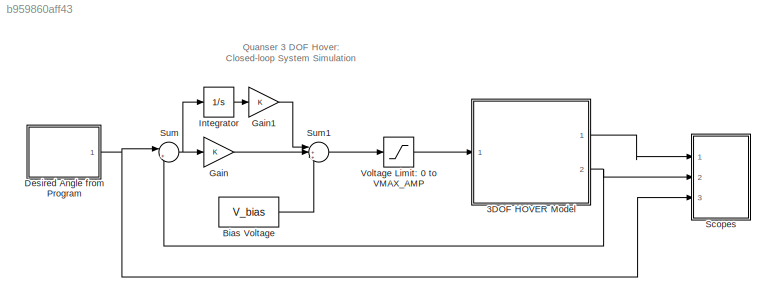
MODEL slx_b959860aff43
KIND model
CONFIG AbsTol = auto
CONFIG FixedStep = 0.002
CONFIG MaxStep = auto
CONFIG MinStep = auto
CONFIG RelTol = 1e-3
CONFIG SampleTimeConstraint = Unconstrained
CONFIG Solver = FixedStepDiscrete
CONFIG SolverMode = Auto
CONFIG SolverName = FixedStepDiscrete
CONFIG StartTime = 0.0
CONFIG StopTime = inf
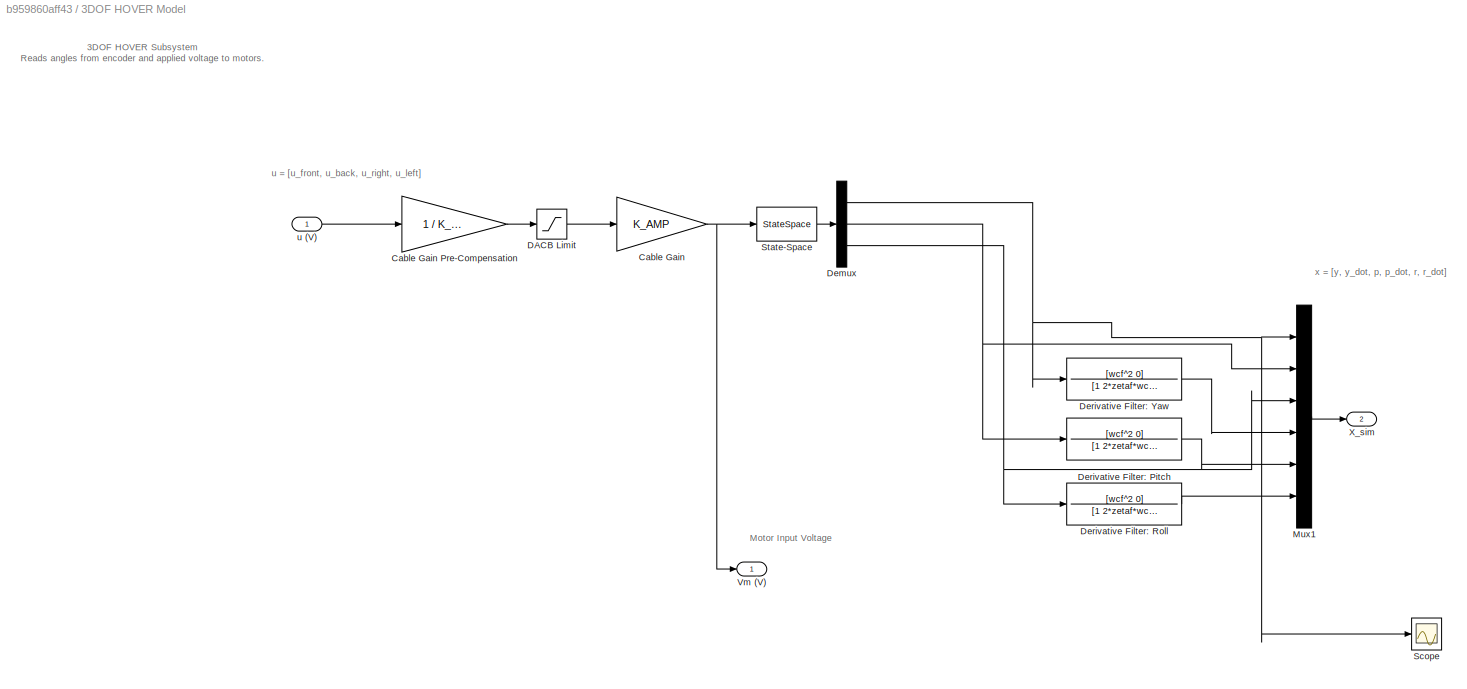
BLOCK [SubSystem] 3DOF HOVER Model
  Ports = [1, 2]
  RequestExecContextInheritance = off
  Variant = off
BLOCK [Gain] 3DOF HOVER Model/Cable Gain
  Gain = K_AMP
  Multiplication = Matrix(K*u)
BLOCK [Gain] 3DOF HOVER Model/Cable Gain Pre-Compensation
  Gain = 1 / K_AMP
  Multiplication = Matrix(K*u)
BLOCK [Saturate] 3DOF HOVER Model/DACB Limit
  InputPortMap = u0
  LowerLimit = -VMAX_DAC
  Ports = [1, 1]
  UpperLimit = VMAX_DAC
BLOCK [Demux] 3DOF HOVER Model/Demux
  DisplayOption = bar
  Outputs = 3
  Ports = [1, 3]
BLOCK [TransferFcn] 3DOF HOVER Model/Derivative Filter: Pitch
  Denominator = [1 2*zetaf*wcf wcf^2]
  Numerator = [wcf^2 0]
BLOCK [TransferFcn] 3DOF HOVER Model/Derivative Filter: Roll
  Denominator = [1 2*zetaf*wcf wcf^2]
  Numerator = [wcf^2 0]
BLOCK [TransferFcn] 3DOF HOVER Model/Derivative Filter: Yaw
  Denominator = [1 2*zetaf*wcf wcf^2]
  Numerator = [wcf^2 0]
BLOCK [Mux] 3DOF HOVER Model/Mux1
  DisplayOption = bar
  Inputs = 6
  Ports = [6, 1]
BLOCK [Scope] 3DOF HOVER Model/Scope
  Ports = [1]
  ScopeSpecificationString = Simulink.scopes.TimeScopeBlockCfg('CurrentConfiguration', extmgr.ConfigurationSet(extmgr.Configuration('Core','General UI',true),extmgr.Configuration('Core','Source UI',true),extmgr.Configuration('Sources','WiredSimulink',true),extmgr.Configuration('Visuals','Time Domain',true,'SerializedDisplays',{struct('MinYLimReal','-6.13347','MaxYLimReal','5.48015','YLabelReal','','MinYLimMag','0.00000','MaxY...<+1357ch>
BLOCK [StateSpace] 3DOF HOVER Model/State-Space
  A = A
  B = B
  C = C
  D = D
  Ports = [1, 1]
  X0 = 0
BLOCK [Outport] 3DOF HOVER Model/Vm (V)
  IconDisplay = Port number
BLOCK [Outport] 3DOF HOVER Model/X_sim
  IconDisplay = Port number
  Port = 2
BLOCK [Inport] 3DOF HOVER Model/u (V)
  IconDisplay = Port number
BLOCK [Constant] Bias Voltage
  Value = V_bias
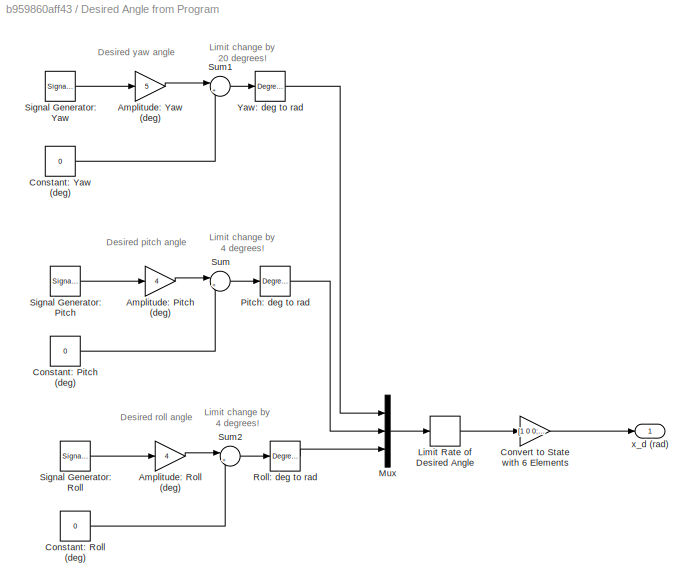
BLOCK [SubSystem] Desired Angle from Program
  Ports = [0, 1]
  RequestExecContextInheritance = off
  Variant = off
BLOCK [Gain] Desired Angle from Program/Amplitude: Pitch (deg)
  Gain = 4
  OutDataTypeStr = Inherit: Inherit via internal rule
  ParamDataTypeStr = Inherit: Inherit via internal rule
  SaturateOnIntegerOverflow = off
BLOCK [Gain] Desired Angle from Program/Amplitude: Roll (deg)
  Gain = 4
  OutDataTypeStr = Inherit: Inherit via internal rule
  ParamDataTypeStr = Inherit: Inherit via internal rule
  SaturateOnIntegerOverflow = off
BLOCK [Gain] Desired Angle from Program/Amplitude: Yaw (deg)
  Gain = 5
  OutDataTypeStr = Inherit: Inherit via internal rule
  ParamDataTypeStr = Inherit: Inherit via internal rule
  SaturateOnIntegerOverflow = off
BLOCK [Constant] Desired Angle from Program/Constant: Pitch (deg)
  Value = 0
BLOCK [Constant] Desired Angle from Program/Constant: Roll (deg)
  Value = 0
BLOCK [Constant] Desired Angle from Program/Constant: Yaw (deg)
  Value = 0
BLOCK [Gain] Desired Angle from Program/Convert to State with 6 Elements
  Gain = [1 0 0; 0 1 0; 0 0 1; 0 0 0; 0 0 0; 0 0 0];
  Multiplication = Matrix(K*u)
  OutDataTypeStr = Inherit: Inherit via internal rule
  ParamDataTypeStr = Inherit: Inherit via internal rule
  SaturateOnIntegerOverflow = off
BLOCK [RateLimiter] Desired Angle from Program/Limit Rate of Desired Angle
  FallingSlewLimit = -CMD_RATE_LIMIT
  RisingSlewLimit = CMD_RATE_LIMIT
BLOCK [Mux] Desired Angle from Program/Mux
  DisplayOption = bar
  Inputs = 3
  Ports = [3, 1]
BLOCK [Reference] Desired Angle from Program/Pitch: deg to rad  REF=simulink_extras/Transformations/Degrees to
Radians
  Ports = [1, 1]
  SourceBlock = simulink_extras/Transformations/Degrees to\nRadians
  SourceType = DegreesToRadians
BLOCK [Reference] Desired Angle from Program/Roll: deg to rad  REF=simulink_extras/Transformations/Degrees to
Radians
  Ports = [1, 1]
  SourceBlock = simulink_extras/Transformations/Degrees to\nRadians
  SourceType = DegreesToRadians
BLOCK [SignalGenerator] Desired Angle from Program/Signal Generator: Pitch
  Frequency = 0.1
  Ports = [0, 1]
  WaveForm = square
BLOCK [SignalGenerator] Desired Angle from Program/Signal Generator: Roll
  Frequency = 0.08
  Ports = [0, 1]
  WaveForm = square
BLOCK [SignalGenerator] Desired Angle from Program/Signal Generator: Yaw
  Frequency = 0.04
  Ports = [0, 1]
  WaveForm = square
BLOCK [Sum] Desired Angle from Program/Sum
  IconShape = round
  InputSameDT = off
  Inputs = |++
  OutDataTypeStr = Inherit: Inherit via internal rule
  Ports = [2, 1]
  SaturateOnIntegerOverflow = off
BLOCK [Sum] Desired Angle from Program/Sum1
  IconShape = round
  InputSameDT = off
  Inputs = |++
  OutDataTypeStr = Inherit: Inherit via internal rule
  Ports = [2, 1]
  SaturateOnIntegerOverflow = off
BLOCK [Sum] Desired Angle from Program/Sum2
  IconShape = round
  InputSameDT = off
  Inputs = |++
  OutDataTypeStr = Inherit: Inherit via internal rule
  Ports = [2, 1]
  SaturateOnIntegerOverflow = off
BLOCK [Reference] Desired Angle from Program/Yaw: deg to rad  REF=simulink_extras/Transformations/Degrees to
Radians
  Ports = [1, 1]
  SourceBlock = simulink_extras/Transformations/Degrees to\nRadians
  SourceType = DegreesToRadians
BLOCK [Outport] Desired Angle from Program/x_d (rad)
  IconDisplay = Port number
BLOCK [Gain] Gain
  Gain = K
  Multiplication = Matrix(K*u)
  OutDataTypeStr = Inherit: Inherit via internal rule
  ParamDataTypeStr = Inherit: Inherit via internal rule
  SaturateOnIntegerOverflow = off
BLOCK [Gain] Gain1
  Commented = on
  Gain = K
  Multiplication = Matrix(K*u)
  OutDataTypeStr = Inherit: Inherit via internal rule
  ParamDataTypeStr = Inherit: Inherit via internal rule
  SaturateOnIntegerOverflow = off
BLOCK [Integrator] Integrator
  Commented = on
  Ports = [1, 1]
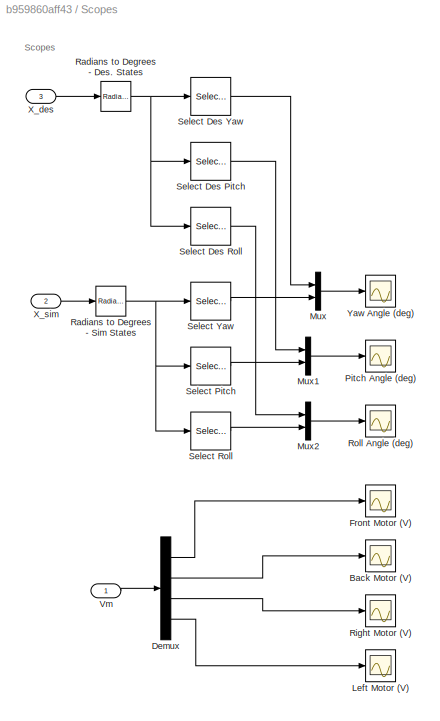
BLOCK [SubSystem] Scopes
  Ports = [3]
  RequestExecContextInheritance = off
  Variant = off
BLOCK [Scope] Scopes/Back Motor (V)
  Ports = [1]
  ScopeSpecificationString = Simulink.scopes.TimeScopeBlockCfg('CurrentConfiguration', extmgr.ConfigurationSet(extmgr.Configuration('Core','General UI',true),extmgr.Configuration('Core','Source UI',true),extmgr.Configuration('Sources','WiredSimulink',true,'DataLogging',true,'DataLoggingVariableName','data_Vb','DataLoggingMaxPoints','10000','DataLoggingLimitDataPoints',true,'DataLoggingSaveFormat','Array','DataLoggingDecimatio...<+1739ch>
BLOCK [Demux] Scopes/Demux
  DisplayOption = bar
  Ports = [1, 4]
BLOCK [Scope] Scopes/Front Motor (V)
  Ports = [1]
  ScopeSpecificationString = Simulink.scopes.TimeScopeBlockCfg('CurrentConfiguration', extmgr.ConfigurationSet(extmgr.Configuration('Core','General UI',true),extmgr.Configuration('Core','Source UI',true),extmgr.Configuration('Sources','WiredSimulink',true,'DataLogging',true,'DataLoggingVariableName','data_Vf','DataLoggingMaxPoints','10000','DataLoggingLimitDataPoints',true,'DataLoggingSaveFormat','Array','DataLoggingDecimatio...<+1741ch>
BLOCK [Scope] Scopes/Left Motor (V)
  Ports = [1]
  ScopeSpecificationString = Simulink.scopes.TimeScopeBlockCfg('CurrentConfiguration', extmgr.ConfigurationSet(extmgr.Configuration('Core','General UI',true),extmgr.Configuration('Core','Source UI',true),extmgr.Configuration('Sources','WiredSimulink',true,'DataLogging',true,'DataLoggingVariableName','data_Vl','DataLoggingMaxPoints','10000','DataLoggingLimitDataPoints',true,'DataLoggingSaveFormat','Array','DataLoggingDecimatio...<+1741ch>
BLOCK [Mux] Scopes/Mux
  DisplayOption = bar
  Inputs = 2
  Ports = [2, 1]
BLOCK [Mux] Scopes/Mux1
  DisplayOption = bar
  Inputs = 2
  Ports = [2, 1]
BLOCK [Mux] Scopes/Mux2
  DisplayOption = bar
  Inputs = 2
  Ports = [2, 1]
BLOCK [Scope] Scopes/Pitch Angle (deg)
  Ports = [1]
  ScopeSpecificationString = Simulink.scopes.TimeScopeBlockCfg('CurrentConfiguration', extmgr.ConfigurationSet(extmgr.Configuration('Core','General UI',true),extmgr.Configuration('Core','Source UI',true),extmgr.Configuration('Sources','WiredSimulink',true,'DataLogging',true,'DataLoggingVariableName','data_pitch','DataLoggingMaxPoints','10000','DataLoggingLimitDataPoints',true,'DataLoggingSaveFormat','Array','DataLoggingDecima...<+1838ch>
BLOCK [Reference] Scopes/Radians to Degrees - Des. States  REF=simulink_extras/Transformations/Radians
to Degrees
  Ports = [1, 1]
  SourceBlock = simulink_extras/Transformations/Radians\nto Degrees
  SourceType = RadiansToDegrees
BLOCK [Reference] Scopes/Radians to Degrees - Sim States  REF=simulink_extras/Transformations/Radians
to Degrees
  Ports = [1, 1]
  SourceBlock = simulink_extras/Transformations/Radians\nto Degrees
  SourceType = RadiansToDegrees
BLOCK [Scope] Scopes/Right Motor (V)
  Ports = [1]
  ScopeSpecificationString = Simulink.scopes.TimeScopeBlockCfg('CurrentConfiguration', extmgr.ConfigurationSet(extmgr.Configuration('Core','General UI',true),extmgr.Configuration('Core','Source UI',true),extmgr.Configuration('Sources','WiredSimulink',true,'DataLogging',true,'DataLoggingVariableName','data_Vr','DataLoggingMaxPoints','10000','DataLoggingLimitDataPoints',true,'DataLoggingSaveFormat','Array','DataLoggingDecimatio...<+1740ch>
BLOCK [Scope] Scopes/Roll Angle (deg)
  Ports = [1]
  ScopeSpecificationString = Simulink.scopes.TimeScopeBlockCfg('CurrentConfiguration', extmgr.ConfigurationSet(extmgr.Configuration('Core','General UI',true),extmgr.Configuration('Core','Source UI',true),extmgr.Configuration('Sources','WiredSimulink',true,'DataLogging',true,'DataLoggingVariableName','data_roll','DataLoggingMaxPoints','10000','DataLoggingLimitDataPoints',true,'DataLoggingSaveFormat','Array','DataLoggingDecimat...<+1836ch>
BLOCK [Selector] Scopes/Select Des Pitch
  IndexOptions = Index vector (dialog)
  Indices = 2
  InputPortWidth = 6
  OutputSizes = 1
  Ports = [1, 1]
BLOCK [Selector] Scopes/Select Des Roll
  IndexOptions = Index vector (dialog)
  Indices = 3
  InputPortWidth = 6
  OutputSizes = 1
  Ports = [1, 1]
BLOCK [Selector] Scopes/Select Des Yaw
  IndexOptions = Index vector (dialog)
  Indices = 1
  InputPortWidth = 6
  OutputSizes = 1
  Ports = [1, 1]
BLOCK [Selector] Scopes/Select Pitch
  IndexOptions = Index vector (dialog)
  Indices = 2
  InputPortWidth = 6
  OutputSizes = 1
  Ports = [1, 1]
BLOCK [Selector] Scopes/Select Roll
  IndexOptions = Index vector (dialog)
  Indices = 3
  InputPortWidth = 6
  OutputSizes = 1
  Ports = [1, 1]
BLOCK [Selector] Scopes/Select Yaw
  IndexOptions = Index vector (dialog)
  Indices = 1
  InputPortWidth = 6
  OutputSizes = 1
  Ports = [1, 1]
BLOCK [Inport] Scopes/Vm
  IconDisplay = Port number
BLOCK [Inport] Scopes/X_des
  IconDisplay = Port number
  Port = 3
BLOCK [Inport] Scopes/X_sim
  IconDisplay = Port number
  Port = 2
BLOCK [Scope] Scopes/Yaw Angle (deg)
  Ports = [1]
  ScopeSpecificationString = Simulink.scopes.TimeScopeBlockCfg('CurrentConfiguration', extmgr.ConfigurationSet(extmgr.Configuration('Core','General UI',true),extmgr.Configuration('Core','Source UI',true),extmgr.Configuration('Sources','WiredSimulink',true,'DataLogging',true,'DataLoggingVariableName','data_yaw','DataLoggingMaxPoints','10000','DataLoggingLimitDataPoints',true,'DataLoggingSaveFormat','Array','DataLoggingDecimati...<+1843ch>
BLOCK [Sum] Sum
  IconShape = round
  InputSameDT = off
  Inputs = |+-
  OutDataTypeStr = Inherit: Inherit via internal rule
  Ports = [2, 1]
  SaturateOnIntegerOverflow = off
BLOCK [Sum] Sum1
  IconShape = round
  InputSameDT = off
  Inputs = |+++
  OutDataTypeStr = Inherit: Inherit via internal rule
  Ports = [3, 1]
  SaturateOnIntegerOverflow = off
BLOCK [Saturate] Voltage Limit: 0 to VMAX_AMP
  InputPortMap = u0
  LowerLimit = 0
  Ports = [1, 1]
  UpperLimit = VMAX_AMP
ANNOTATION (root): Quanser 3 DOF Hover: Closed-loop System Simulation
ANNOTATION 3DOF HOVER Model: 3DOF HOVER Subsystem Reads angles from encoder and applied voltage to motors.
ANNOTATION 3DOF HOVER Model: Motor Input Voltage
ANNOTATION 3DOF HOVER Model: u = [u_front, u_back, u_right, u_left]
ANNOTATION 3DOF HOVER Model: x = [y, y_dot, p, p_dot, r, r_dot]
ANNOTATION Desired Angle from Program: Desired pitch angle
ANNOTATION Desired Angle from Program: Desired roll angle
ANNOTATION Desired Angle from Program: Desired yaw angle
ANNOTATION Desired Angle from Program: Limit change by 20 degrees!
ANNOTATION Desired Angle from Program: Limit change by 4 degrees!
ANNOTATION Scopes: Scopes
LINE 3DOF HOVER Model/Cable Gain Pre-Compensation:1 -> 3DOF HOVER Model/DACB Limit:1
NET 3DOF HOVER Model/Cable Gain:1 -> 3DOF HOVER Model/State-Space:1, 3DOF HOVER Model/Vm (V):1
LINE 3DOF HOVER Model/DACB Limit:1 -> 3DOF HOVER Model/Cable Gain:1
NET 3DOF HOVER Model/Demux:1 -> 3DOF HOVER Model/Derivative Filter: Yaw:1, 3DOF HOVER Model/Mux1:1, 3DOF HOVER Model/Scope:1
NET 3DOF HOVER Model/Demux:2 -> 3DOF HOVER Model/Derivative Filter: Pitch:1, 3DOF HOVER Model/Mux1:2
NET 3DOF HOVER Model/Demux:3 -> 3DOF HOVER Model/Derivative Filter: Roll:1, 3DOF HOVER Model/Mux1:3
LINE 3DOF HOVER Model/Derivative Filter: Pitch:1 -> 3DOF HOVER Model/Mux1:5
LINE 3DOF HOVER Model/Derivative Filter: Roll:1 -> 3DOF HOVER Model/Mux1:6
LINE 3DOF HOVER Model/Derivative Filter: Yaw:1 -> 3DOF HOVER Model/Mux1:4
LINE 3DOF HOVER Model/Mux1:1 -> 3DOF HOVER Model/X_sim:1
LINE 3DOF HOVER Model/State-Space:1 -> 3DOF HOVER Model/Demux:1
LINE 3DOF HOVER Model/u (V):1 -> 3DOF HOVER Model/Cable Gain Pre-Compensation:1
LINE 3DOF HOVER Model:1 -> Scopes:1
NET 3DOF HOVER Model:2 -> Scopes:2, Sum:2
LINE Bias Voltage:1 -> Sum1:3
LINE Desired Angle from Program/Amplitude: Pitch (deg):1 -> Desired Angle from Program/Sum:1
LINE Desired Angle from Program/Amplitude: Roll (deg):1 -> Desired Angle from Program/Sum2:1
LINE Desired Angle from Program/Amplitude: Yaw (deg):1 -> Desired Angle from Program/Sum1:1
LINE Desired Angle from Program/Constant: Pitch (deg):1 -> Desired Angle from Program/Sum:2
LINE Desired Angle from Program/Constant: Roll (deg):1 -> Desired Angle from Program/Sum2:2
LINE Desired Angle from Program/Constant: Yaw (deg):1 -> Desired Angle from Program/Sum1:2
LINE Desired Angle from Program/Convert to State with 6 Elements:1 -> Desired Angle from Program/x_d (rad):1
LINE Desired Angle from Program/Limit Rate of Desired Angle:1 -> Desired Angle from Program/Convert to State with 6 Elements:1
LINE Desired Angle from Program/Mux:1 -> Desired Angle from Program/Limit Rate of Desired Angle:1
LINE Desired Angle from Program/Pitch: deg to rad:1 -> Desired Angle from Program/Mux:2
LINE Desired Angle from Program/Roll: deg to rad:1 -> Desired Angle from Program/Mux:3
LINE Desired Angle from Program/Signal Generator: Pitch:1 -> Desired Angle from Program/Amplitude: Pitch (deg):1
LINE Desired Angle from Program/Signal Generator: Roll:1 -> Desired Angle from Program/Amplitude: Roll (deg):1
LINE Desired Angle from Program/Signal Generator: Yaw:1 -> Desired Angle from Program/Amplitude: Yaw (deg):1
LINE Desired Angle from Program/Sum1:1 -> Desired Angle from Program/Yaw: deg to rad:1
LINE Desired Angle from Program/Sum2:1 -> Desired Angle from Program/Roll: deg to rad:1
LINE Desired Angle from Program/Sum:1 -> Desired Angle from Program/Pitch: deg to rad:1
LINE Desired Angle from Program/Yaw: deg to rad:1 -> Desired Angle from Program/Mux:1
NET Desired Angle from Program:1 -> Scopes:3, Sum:1
LINE Gain1:1 -> Sum1:1
LINE Gain:1 -> Sum1:2
LINE Integrator:1 -> Gain1:1
LINE Scopes/Demux:1 -> Scopes/Front Motor (V):1
LINE Scopes/Demux:2 -> Scopes/Back Motor (V):1
LINE Scopes/Demux:3 -> Scopes/Right Motor (V):1
LINE Scopes/Demux:4 -> Scopes/Left Motor (V):1
LINE Scopes/Mux1:1 -> Scopes/Pitch Angle (deg):1
LINE Scopes/Mux2:1 -> Scopes/Roll Angle (deg):1
LINE Scopes/Mux:1 -> Scopes/Yaw Angle (deg):1
NET Scopes/Radians to Degrees - Des. States:1 -> Scopes/Select Des Pitch:1, Scopes/Select Des Roll:1, Scopes/Select Des Yaw:1
NET Scopes/Radians to Degrees - Sim States:1 -> Scopes/Select Pitch:1, Scopes/Select Roll:1, Scopes/Select Yaw:1
LINE Scopes/Select Des Pitch:1 -> Scopes/Mux1:1
LINE Scopes/Select Des Roll:1 -> Scopes/Mux2:1
LINE Scopes/Select Des Yaw:1 -> Scopes/Mux:1
LINE Scopes/Select Pitch:1 -> Scopes/Mux1:2
LINE Scopes/Select Roll:1 -> Scopes/Mux2:2
LINE Scopes/Select Yaw:1 -> Scopes/Mux:2
LINE Scopes/Vm:1 -> Scopes/Demux:1
LINE Scopes/X_des:1 -> Scopes/Radians to Degrees - Des. States:1
LINE Scopes/X_sim:1 -> Scopes/Radians to Degrees - Sim States:1
LINE Sum1:1 -> Voltage Limit: 0 to VMAX_AMP:1
NET Sum:1 -> Gain:1, Integrator:1
LINE Voltage Limit: 0 to VMAX_AMP:1 -> 3DOF HOVER Model:1
note: NET lines group one-source signal fan-out (src -> all destinations, sorted); 1:1 wires keep LINE
